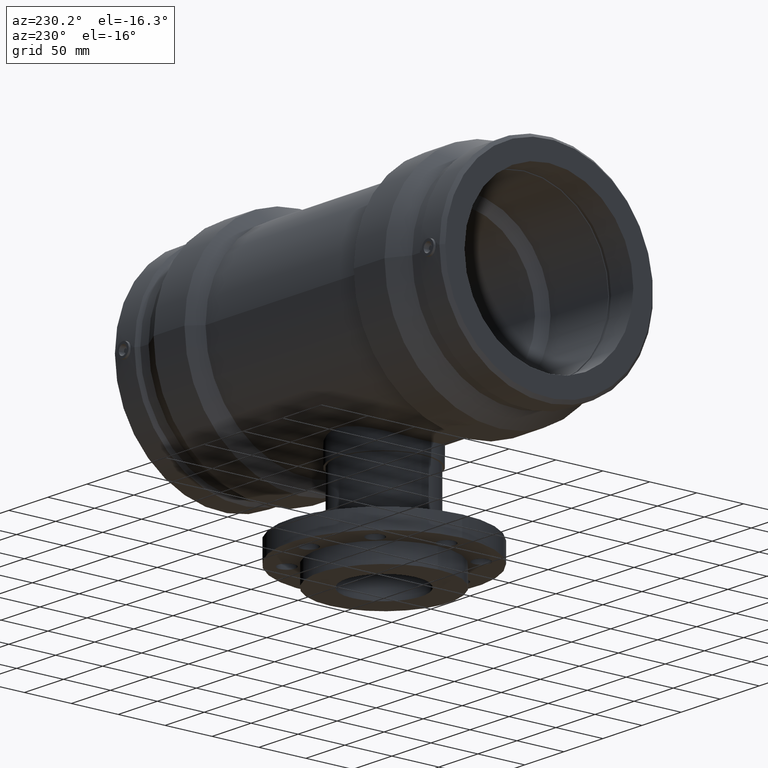
[diagram: clean part render]
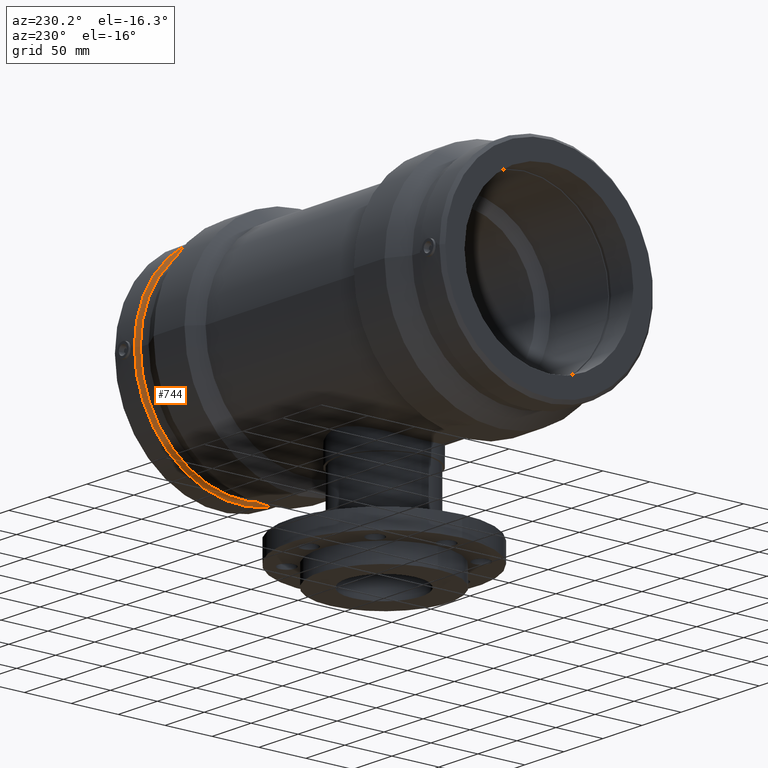
[diagram: same view with one face highlighted and labeled with its STEP entity id]
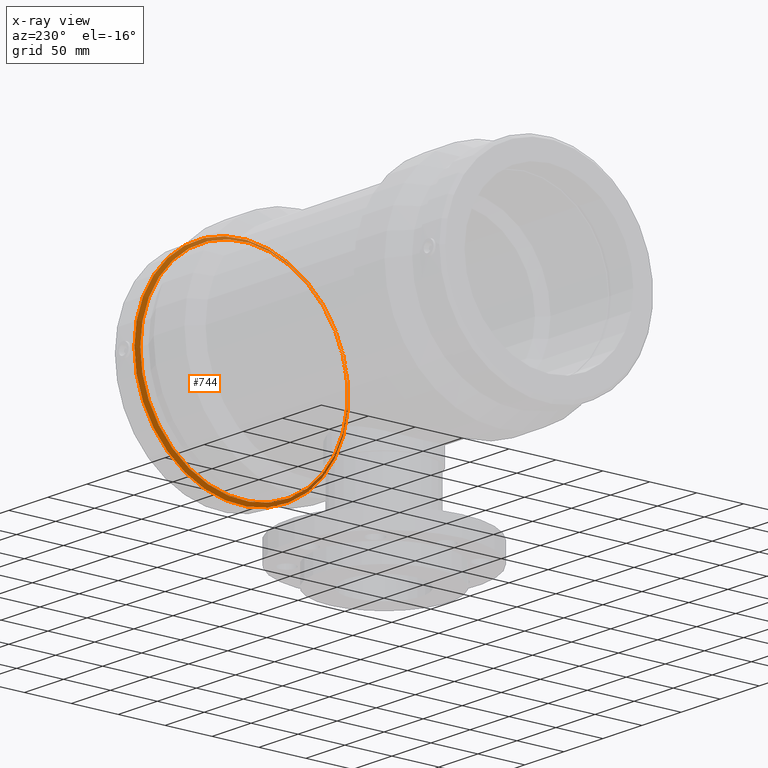
[diagram: x-ray of the same camera — body ghosted, the highlighted face saturated]
A machine part, auxiliary view. The second image highlights one B-rep face of the part: STEP entity #744.
The next image is the same camera in x-ray: the body ghosted, the highlighted face saturated — about 24% of this face is hidden behind the body in this view.
In plain terms, the highlighted conical surface has half-angle 45 deg.
Its self-contained STEP definition (entity closure, byte-faithful):
#24=CONICAL_SURFACE('',#855,112.216125,44.9999999999999);
#104=FACE_BOUND('',#381,.T.);
#170=CIRCLE('',#854,110.50725);
#171=CIRCLE('',#856,113.925);
#260=FACE_OUTER_BOUND('',#380,.T.);
#380=EDGE_LOOP('',(#666));
#381=EDGE_LOOP('',(#667));
#473=VERTEX_POINT('',#1683);
#474=VERTEX_POINT('',#1686);
#543=EDGE_CURVE('',#473,#473,#170,.T.);
#544=EDGE_CURVE('',#474,#474,#171,.T.);
#666=ORIENTED_EDGE('',*,*,#543,.T.);
#667=ORIENTED_EDGE('',*,*,#544,.F.);
#744=ADVANCED_FACE('',(#260,#104),#24,.T.);
#854=AXIS2_PLACEMENT_3D('',#1684,#1073,#1074);
#855=AXIS2_PLACEMENT_3D('',#1685,#1075,#1076);
#856=AXIS2_PLACEMENT_3D('',#1687,#1077,#1078);
#1073=DIRECTION('center_axis',(1.,0.,0.));
#1074=DIRECTION('ref_axis',(0.,0.,-1.));
#1075=DIRECTION('center_axis',(1.,0.,0.));
#1076=DIRECTION('ref_axis',(0.,1.,0.));
#1077=DIRECTION('center_axis',(1.,0.,0.));
#1078=DIRECTION('ref_axis',(0.,0.,-1.));
#1683=CARTESIAN_POINT('',(179.2,110.50725,0.));
#1684=CARTESIAN_POINT('Origin',(179.2,0.,0.));
#1685=CARTESIAN_POINT('Origin',(180.908875,0.,0.));
#1686=CARTESIAN_POINT('',(182.61775,113.925,0.));
#1687=CARTESIAN_POINT('Origin',(182.61775,0.,0.));